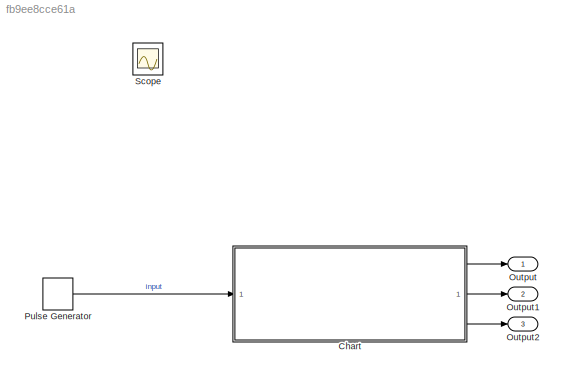
MODEL slx_fb9ee8cce61a
KIND model
CONFIG AbsTol = auto
CONFIG EnableMultiTasking = off
CONFIG FixedStep = auto
CONFIG MaxStep = auto
CONFIG MinStep = auto
CONFIG RelTol = 1e-3
CONFIG SampleTimeConstraint = Unconstrained
CONFIG SolverName = VariableStepAuto
CONFIG StartTime = 0.0
CONFIG StopTime = 10
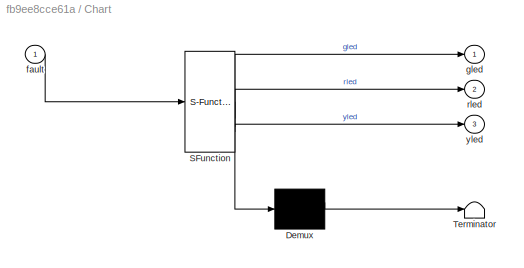
BLOCK [SubSystem] Chart
  ErrorFcn = Stateflow.Translate.translate
  PermitHierarchicalResolution = ExplicitOnly
  SFBlockType = Chart
  TreatAsAtomicUnit = on
BLOCK [Demux] Chart/ Demux 
  Outputs = 1
BLOCK [S-Function] Chart/ SFunction 
  EnableBusSupport = on
  FunctionName = sf_sfun
  PortCounts = [1 4]
  SFcnIsStateOwnerBlock = off
  SFunctionDeploymentMode = off
  Tag = Stateflow S-Function 3
BLOCK [Terminator] Chart/ Terminator 
BLOCK [Inport] Chart/fault
BLOCK [Outport] Chart/gled
BLOCK [Outport] Chart/rled
  Port = 2
BLOCK [Outport] Chart/yled
  Port = 3
BLOCK [Outport] Output
BLOCK [Outport] Output1
  Port = 2
BLOCK [Outport] Output2
  Port = 3
BLOCK [DiscretePulseGenerator] Pulse Generator
  Period = 10
  PulseType = Time based
  PulseWidth = 50
BLOCK [Scope] Scope
  Floating = off
  IOType = viewer
  NumInputPorts = 1
  ScopeSpecificationString = Simulink.scopes.TimeScopeBlockCfg('CurrentConfiguration', extmgr.ConfigurationSet(extmgr.Configuration('Core','General UI',true),extmgr.Configuration('Core','Source UI',true),extmgr.Configuration('Sources','WiredSimulink',true),extmgr.Configuration('Visuals','Time Domain',true,'SerializedDisplays',{struct('MinYLimReal','-0.125','MaxYLimReal','1.125','YLabelReal','','MinYLimMag','0.00000','MaxYLimM...<+3398ch>
LINE Chart:1 -> Output:1
LINE Chart:2 -> Output1:1
LINE Chart:3 -> Output2:1
LINE Pulse Generator:1 -> Chart:1
CHART Chart states=7 transitions=10
  STATE_LABEL 'normal'
  STATE_LABEL 'red\nen:\nrled=1\ngled=0\nyled=0\n'
  STATE_LABEL 'green\nen:\nrled=0\ngled=1\nyled=0\n'
  STATE_LABEL 'yellow\nen:\nrled=0\ngled=0\nyled=1\n'
  STATE_LABEL 'after(1,sec)'
  STATE_LABEL 'after(1,sec)'
  STATE_LABEL 'after(1,sec)'
  STATE_LABEL 'red\nen:\nrled=1\ngled=0\nyled=0\n'
  STATE_LABEL 'green\nen:\nrled=0\ngled=1\nyled=0\n'
  STATE_LABEL 'yellow\nen:\nrled=0\ngled=0\nyled=1\n'
  STATE_LABEL 'falier'
  STATE_LABEL 'on\nen:\nrled=1\n'
  STATE_LABEL 'off\nen:\nrled=0\n'
  STATE_LABEL 'on\nen:\nrled=1\n'
  STATE_LABEL 'off\nen:\nrled=0\n'
CHART  states=0 transitions=0
